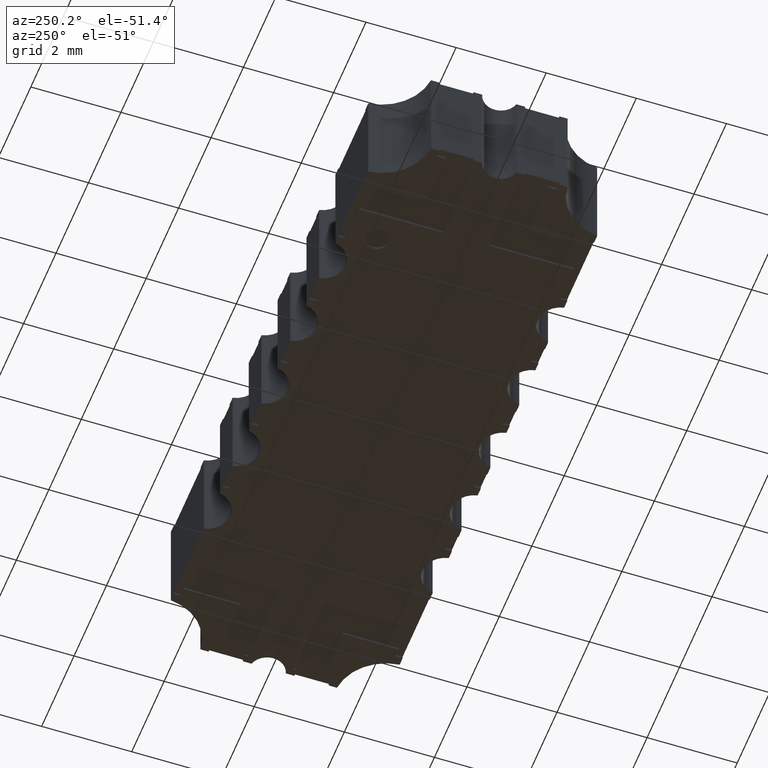
[diagram: clean part render]
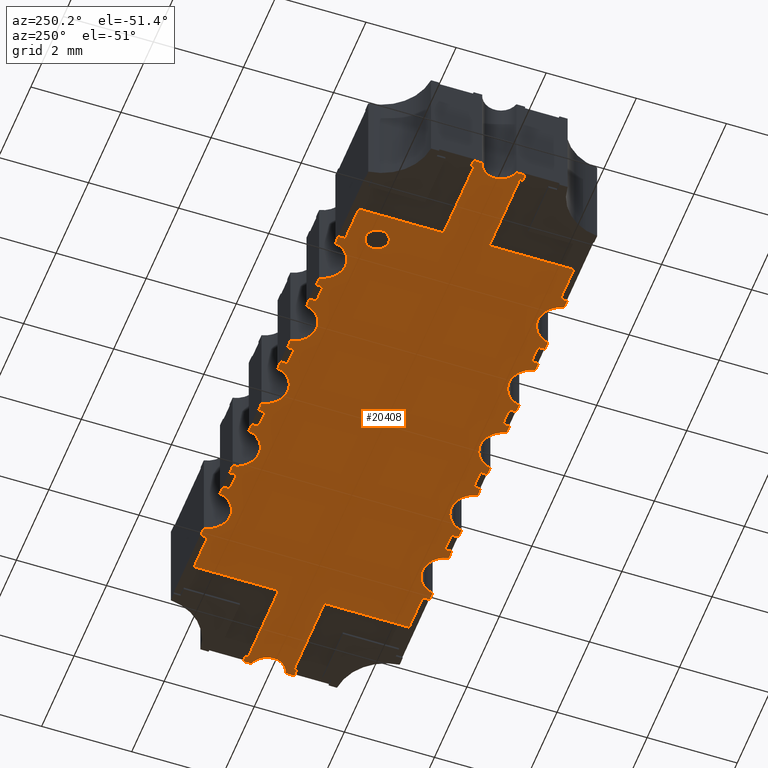
[diagram: same view with one face highlighted and labeled with its STEP entity id]
A machine part, auxiliary view. The second image highlights one B-rep face of the part: STEP entity #20408.
In plain terms, the highlighted planar face has unit normal (0, 0, 1).
Its self-contained STEP definition (entity closure, byte-faithful):
#44 = LINE ( 'NONE', #15777, #13889 ) ;
#46 = VERTEX_POINT ( 'NONE', #7331 ) ;
#55 = CARTESIAN_POINT ( 'NONE',  ( -0.2800000583921977149, -0.02250000000139679157, 0.000000000000000000 ) ) ;
#138 = EDGE_CURVE ( 'NONE', #10759, #2421, #2082, .T. ) ;
#159 = DIRECTION ( 'NONE',  ( 1.000000000000000000, 0.000000000000000000, 0.000000000000000000 ) ) ;
#169 = DIRECTION ( 'NONE',  ( 1.000000000000000000, 0.000000000000000000, 0.000000000000000000 ) ) ;
#213 = CARTESIAN_POINT ( 'NONE',  ( 0.1670031117323745318, -0.1000000000000482725, 0.000000000000000000 ) ) ;
#274 = CARTESIAN_POINT ( 'NONE',  ( -0.04299847332988399051, -0.09400000000135955158, 0.000000000000000000 ) ) ;
#282 = ORIENTED_EDGE ( 'NONE', *, *, #5411, .T. ) ;
#378 = LINE ( 'NONE', #7483, #17593 ) ;
#397 = CARTESIAN_POINT ( 'NONE',  ( 0.06999835654548830499, -0.1040000000012170633, 0.000000000000000000 ) ) ;
#553 = CARTESIAN_POINT ( 'NONE',  ( 0.1999999416078020453, -0.09400000000135866340, 0.000000000000000000 ) ) ;
#558 = DIRECTION ( 'NONE',  ( 1.000000000000000000, 0.000000000000000000, -0.000000000000000000 ) ) ;
#562 = EDGE_CURVE ( 'NONE', #20736, #11727, #6788, .T. ) ;
#575 = VERTEX_POINT ( 'NONE', #6660 ) ;
#607 = CIRCLE ( 'NONE', #7700, 0.02000000000000011144 ) ;
#627 = LINE ( 'NONE', #6201, #1980 ) ;
#650 = DIRECTION ( 'NONE',  ( 1.000000000000000000, 4.499242896688456966E-15, 0.000000000000000000 ) ) ;
#658 = VECTOR ( 'NONE', #7138, 39.37007874015748143 ) ;
#683 = EDGE_CURVE ( 'NONE', #13404, #2421, #8522, .T. ) ;
#692 = LINE ( 'NONE', #16977, #8382 ) ;
#700 = EDGE_CURVE ( 'NONE', #6027, #5141, #16091, .T. ) ;
#796 = DIRECTION ( 'NONE',  ( 1.000000000000000000, 1.386854387300352994E-14, 0.000000000000000000 ) ) ;
#807 = CARTESIAN_POINT ( 'NONE',  ( 0.01959585954974790711, 0.09999999999995101696, 0.000000000000000000 ) ) ;
#809 = AXIS2_PLACEMENT_3D ( 'NONE', #18792, #15298, #985 ) ;
#841 = AXIS2_PLACEMENT_3D ( 'NONE', #20437, #17071, #1468 ) ;
#852 = ORIENTED_EDGE ( 'NONE', *, *, #12425, .T. ) ;
#864 = LINE ( 'NONE', #22273, #1746 ) ;
#887 = LINE ( 'NONE', #18917, #11302 ) ;
#917 = DIRECTION ( 'NONE',  ( 0.000000000000000000, 1.000000000000000000, 0.000000000000000000 ) ) ;
#985 = DIRECTION ( 'NONE',  ( 1.000000000000000000, 0.000000000000000000, 0.000000000000000000 ) ) ;
#1002 = CARTESIAN_POINT ( 'NONE',  ( -0.2000000583921980879, -0.09400000000136349287, 0.000000000000000000 ) ) ;
#1020 = EDGE_CURVE ( 'NONE', #46, #16119, #12538, .T. ) ;
#1094 = LINE ( 'NONE', #9946, #9425 ) ;
#1098 = LINE ( 'NONE', #18448, #12921 ) ;
#1122 = EDGE_CURVE ( 'NONE', #15442, #6054, #15302, .T. ) ;
#1127 = CARTESIAN_POINT ( 'NONE',  ( 0.1670031117323736436, 0.09999999999995168309, 0.000000000000000000 ) ) ;
#1258 = EDGE_CURVE ( 'NONE', #10493, #10669, #16008, .T. ) ;
#1259 = EDGE_CURVE ( 'NONE', #17831, #575, #44, .T. ) ;
#1377 = CARTESIAN_POINT ( 'NONE',  ( -0.08959439127191033692, 0.09999999999995057287, 0.000000000000000000 ) ) ;
#1434 = CARTESIAN_POINT ( 'NONE',  ( 0.2739999415795458249, 0.02249999999860335942, 0.000000000000000000 ) ) ;
#1435 = EDGE_CURVE ( 'NONE', #7039, #14769, #627, .T. ) ;
#1453 = VERTEX_POINT ( 'NONE', #11000 ) ;
#1468 = DIRECTION ( 'NONE',  ( 1.000000000000000000, 0.000000000000000000, 0.000000000000000000 ) ) ;
#1472 = VERTEX_POINT ( 'NONE', #7843 ) ;
#1478 = CARTESIAN_POINT ( 'NONE',  ( 0.1670031117323745318, -0.09400000000135877443, 0.000000000000000000 ) ) ;
#1548 = DIRECTION ( 'NONE',  ( 1.000000000000000000, 3.325403303753631083E-15, 0.000000000000000000 ) ) ;
#1563 = VECTOR ( 'NONE', #19283, 39.37007874015748143 ) ;
#1564 = DIRECTION ( 'NONE',  ( -1.000000000000000000, 0.000000000000000000, 0.000000000000000000 ) ) ;
#1578 = CARTESIAN_POINT ( 'NONE',  ( 0.01959585954979498057, -0.1000000000000488276, 0.000000000000000000 ) ) ;
#1583 = CIRCLE ( 'NONE', #9761, 0.02000000000000019817 ) ;
#1592 = VECTOR ( 'NONE', #8478, 39.37007874015748143 ) ;
#1668 = VERTEX_POINT ( 'NONE', #10743 ) ;
#1695 = ORIENTED_EDGE ( 'NONE', *, *, #19243, .F. ) ;
#1705 = VECTOR ( 'NONE', #13864, 39.37007874015748143 ) ;
#1718 = VECTOR ( 'NONE', #8826, 39.37007874015748143 ) ;
#1746 = VECTOR ( 'NONE', #11691, 39.37007874015748143 ) ;
#1779 = DIRECTION ( 'NONE',  ( 3.699377492228362996E-14, -1.000000000000000000, 0.000000000000000000 ) ) ;
#1820 = CARTESIAN_POINT ( 'NONE',  ( -0.09699847332988381643, -0.1000000000000492717, 0.000000000000000000 ) ) ;
#1829 = CIRCLE ( 'NONE', #18551, 0.01999999999999994144 ) ;
#1847 = DIRECTION ( 'NONE',  ( -1.000000000000000000, 0.000000000000000000, 0.000000000000000000 ) ) ;
#1899 = ORIENTED_EDGE ( 'NONE', *, *, #19814, .F. ) ;
#1904 = CARTESIAN_POINT ( 'NONE',  ( -0.04299847332988465665, 0.09400000000126063071, 0.000000000000000000 ) ) ;
#1914 = VECTOR ( 'NONE', #1779, 39.37007874015748143 ) ;
#1931 = VERTEX_POINT ( 'NONE', #18283 ) ;
#1959 = LINE ( 'NONE', #3823, #2191 ) ;
#1980 = VECTOR ( 'NONE', #12980, 39.37007874015748143 ) ;
#2027 = ORIENTED_EDGE ( 'NONE', *, *, #16584, .T. ) ;
#2076 = DIRECTION ( 'NONE',  ( -0.000000000000000000, -0.000000000000000000, -1.000000000000000000 ) ) ;
#2079 = DIRECTION ( 'NONE',  ( -1.000000000000000000, 3.823426906372951005E-14, -0.000000000000000000 ) ) ;
#2082 = LINE ( 'NONE', #9188, #8631 ) ;
#2187 = DIRECTION ( 'NONE',  ( 0.000000000000000000, 0.000000000000000000, 1.000000000000000000 ) ) ;
#2191 = VECTOR ( 'NONE', #1847, 39.37007874015748143 ) ;
#2224 = EDGE_CURVE ( 'NONE', #1472, #12613, #5229, .T. ) ;
#2237 = VERTEX_POINT ( 'NONE', #8958 ) ;
#2260 = LINE ( 'NONE', #7743, #3019 ) ;
#2281 = VERTEX_POINT ( 'NONE', #7332 ) ;
#2290 = CARTESIAN_POINT ( 'NONE',  ( 0.1670031117323736436, 0.09400000000126151889, 0.000000000000000000 ) ) ;
#2293 = CARTESIAN_POINT ( 'NONE',  ( 0.1670031117323736436, 0.09400000000126151889, 0.000000000000000000 ) ) ;
#2325 = ORIENTED_EDGE ( 'NONE', *, *, #21748, .T. ) ;
#2353 = CARTESIAN_POINT ( 'NONE',  ( 0.2839999415794927651, -1.394717247834103868E-12, 0.000000000000000000 ) ) ;
#2421 = VERTEX_POINT ( 'NONE', #22318 ) ;
#2425 = EDGE_CURVE ( 'NONE', #9926, #16157, #8130, .T. ) ;
#2472 = ORIENTED_EDGE ( 'NONE', *, *, #20001, .T. ) ;
#2536 = DIRECTION ( 'NONE',  ( 1.000000000000000000, 3.325403303753631083E-15, 0.000000000000000000 ) ) ;
#2546 = LINE ( 'NONE', #20237, #18422 ) ;
#2582 = ORIENTED_EDGE ( 'NONE', *, *, #18610, .T. ) ;
#2600 = CARTESIAN_POINT ( 'NONE',  ( -0.02700005839217049786, 0.09999999999995097533, 0.000000000000000000 ) ) ;
#2634 = VERTEX_POINT ( 'NONE', #1434 ) ;
#2801 = DIRECTION ( 'NONE',  ( 0.000000000000000000, 1.000000000000000000, 0.000000000000000000 ) ) ;
#2895 = LINE ( 'NONE', #15351, #8284 ) ;
#2918 = VERTEX_POINT ( 'NONE', #8849 ) ;
#2934 = ORIENTED_EDGE ( 'NONE', *, *, #10200, .T. ) ;
#2939 = CARTESIAN_POINT ( 'NONE',  ( -0.1400032285167702173, -0.1040000000012463038, 0.000000000000000000 ) ) ;
#3019 = VECTOR ( 'NONE', #20073, 39.37007874015748143 ) ;
#3055 = VECTOR ( 'NONE', #7084, 39.37007874015748143 ) ;
#3179 = CARTESIAN_POINT ( 'NONE',  ( 0.1999999416078016012, -0.02000000000004859002, 0.000000000000000000 ) ) ;
#3262 = ORIENTED_EDGE ( 'NONE', *, *, #23042, .F. ) ;
#3266 = EDGE_CURVE ( 'NONE', #12104, #13884, #13696, .T. ) ;
#3271 = LINE ( 'NONE', #17697, #12865 ) ;
#3361 = LINE ( 'NONE', #8485, #23013 ) ;
#3401 = EDGE_CURVE ( 'NONE', #10493, #7039, #11939, .T. ) ;
#3499 = CARTESIAN_POINT ( 'NONE',  ( 0.1595990296743954873, -0.1000000000000498823, 0.000000000000000000 ) ) ;
#3530 = VERTEX_POINT ( 'NONE', #2600 ) ;
#3554 = VECTOR ( 'NONE', #10344, 39.37007874015748143 ) ;
#3597 = CARTESIAN_POINT ( 'NONE',  ( -0.1669968882675984534, -0.09400000000136349287, 0.000000000000000000 ) ) ;
#3772 = ORIENTED_EDGE ( 'NONE', *, *, #2224, .T. ) ;
#3789 = VERTEX_POINT ( 'NONE', #7717 ) ;
#3823 = CARTESIAN_POINT ( 'NONE',  ( 0.2739999415795564830, -0.02000000000004859002, 0.000000000000000000 ) ) ;
#3841 = EDGE_CURVE ( 'NONE', #18755, #20999, #5868, .T. ) ;
#3935 = FACE_OUTER_BOUND ( 'NONE', #5377, .T. ) ;
#3941 = LINE ( 'NONE', #13136, #16441 ) ;
#4005 = ORIENTED_EDGE ( 'NONE', *, *, #21898, .T. ) ;
#4136 = ORIENTED_EDGE ( 'NONE', *, *, #10334, .T. ) ;
#4216 = ORIENTED_EDGE ( 'NONE', *, *, #7311, .T. ) ;
#4306 = CARTESIAN_POINT ( 'NONE',  ( -0.1204073105747489048, -0.1000000000000493827, 0.000000000000000000 ) ) ;
#4368 = VECTOR ( 'NONE', #12172, 39.37007874015748143 ) ;
#4413 = ORIENTED_EDGE ( 'NONE', *, *, #18772, .F. ) ;
#4431 = VECTOR ( 'NONE', #22065, 39.37007874015748143 ) ;
#4487 = CARTESIAN_POINT ( 'NONE',  ( -0.1669968882675988975, 0.09400000000125686983, 0.000000000000000000 ) ) ;
#4505 = CARTESIAN_POINT ( 'NONE',  ( -0.2800000583921977149, -0.01497497914080020247, 0.000000000000000000 ) ) ;
#4523 = VERTEX_POINT ( 'NONE', #22305 ) ;
#4623 = LINE ( 'NONE', #1127, #16331 ) ;
#4668 = DIRECTION ( 'NONE',  ( 1.000000000000000000, 0.000000000000000000, 0.000000000000000000 ) ) ;
#4731 = LINE ( 'NONE', #11723, #21038 ) ;
#4788 = VERTEX_POINT ( 'NONE', #10614 ) ;
#4850 = LINE ( 'NONE', #1478, #8135 ) ;
#4889 = DIRECTION ( 'NONE',  ( 1.000000000000000000, 2.366626690042219999E-14, 0.000000000000000000 ) ) ;
#4902 = CARTESIAN_POINT ( 'NONE',  ( 0.02699994160782975480, 0.09999999999995101696, 0.000000000000000000 ) ) ;
#4918 = VECTOR ( 'NONE', #17984, 39.37007874015748143 ) ;
#4920 = EDGE_CURVE ( 'NONE', #1472, #2237, #17936, .T. ) ;
#4965 = ORIENTED_EDGE ( 'NONE', *, *, #6583, .T. ) ;
#5141 = VERTEX_POINT ( 'NONE', #9888 ) ;
#5162 = CARTESIAN_POINT ( 'NONE',  ( 0.2684999415794928623, -1.394717247834103868E-12, 0.000000000000000000 ) ) ;
#5175 = VERTEX_POINT ( 'NONE', #213 ) ;
#5190 = ORIENTED_EDGE ( 'NONE', *, *, #12233, .F. ) ;
#5191 = VERTEX_POINT ( 'NONE', #8721 ) ;
#5229 = LINE ( 'NONE', #10717, #22438 ) ;
#5244 = EDGE_CURVE ( 'NONE', #14871, #12423, #3941, .T. ) ;
#5250 = DIRECTION ( 'NONE',  ( -1.000000000000000000, -3.622116129762389261E-15, 0.000000000000000000 ) ) ;
#5342 = VERTEX_POINT ( 'NONE', #16516 ) ;
#5377 = EDGE_LOOP ( 'NONE', ( #3772, #18337, #7489, #11083, #11584, #12295, #8566, #16901, #16675, #22428, #13769, #14090, #2325, #19889, #22133, #14029, #12981, #21575, #4216, #20823, #20271, #6934, #19222, #9250, #1899, #10338, #10905, #20022, #19609, #4005, #21211, #20941, #18637, #1695, #17160, #13084, #6111, #6436, #18418, #20495, #18088, #20943, #11673, #2027, #12279, #13795, #11349, #21449, #21287, #21775, #21424, #6076, #5978, #5944, #20784, #20272, #16450, #15656, #14878, #16521, #2934, #4965, #13621, #14054, #15712, #20340, #13853, #3262, #22972, #7099, #14171, #17920, #10248, #2582, #20057, #4136, #4413, #18940, #7844, #282, #852, #13535, #22657, #5190, #13200 ) ) ;
#5410 = CARTESIAN_POINT ( 'NONE',  ( 0.1999999416078016012, 0.01999999999995144551, 0.000000000000000000 ) ) ;
#5411 = EDGE_CURVE ( 'NONE', #12104, #1453, #7061, .T. ) ;
#5452 = FACE_BOUND ( 'NONE', #6203, .T. ) ;
#5472 = EDGE_CURVE ( 'NONE', #7984, #46, #12299, .T. ) ;
#5675 = LINE ( 'NONE', #2290, #8639 ) ;
#5681 = DIRECTION ( 'NONE',  ( 0.000000000000000000, 0.000000000000000000, 1.000000000000000000 ) ) ;
#5697 = VECTOR ( 'NONE', #5250, 39.37007874015748143 ) ;
#5834 = EDGE_CURVE ( 'NONE', #17031, #6027, #13460, .T. ) ;
#5862 = CARTESIAN_POINT ( 'NONE',  ( -0.08959439127191033692, 0.09999999999995057287, 0.000000000000000000 ) ) ;
#5868 = CIRCLE ( 'NONE', #22984, 0.01549999999999990968 ) ;
#5931 = CARTESIAN_POINT ( 'NONE',  ( -0.2740000583639463083, 0.01999999999994966915, 0.000000000000000000 ) ) ;
#5944 = ORIENTED_EDGE ( 'NONE', *, *, #20463, .F. ) ;
#5978 = ORIENTED_EDGE ( 'NONE', *, *, #16693, .F. ) ;
#6027 = VERTEX_POINT ( 'NONE', #5862 ) ;
#6029 = CARTESIAN_POINT ( 'NONE',  ( -0.08959439127196738850, -0.1000000000000492717, 0.000000000000000000 ) ) ;
#6054 = VERTEX_POINT ( 'NONE', #7270 ) ;
#6064 = VECTOR ( 'NONE', #17337, 39.37007874015748143 ) ;
#6076 = ORIENTED_EDGE ( 'NONE', *, *, #5244, .F. ) ;
#6095 = CARTESIAN_POINT ( 'NONE',  ( 0.04299835654554391706, 0.09999999999995119737, 0.000000000000000000 ) ) ;
#6111 = ORIENTED_EDGE ( 'NONE', *, *, #5472, .T. ) ;
#6169 = VERTEX_POINT ( 'NONE', #22492 ) ;
#6183 = LINE ( 'NONE', #20491, #12576 ) ;
#6199 = VERTEX_POINT ( 'NONE', #6545 ) ;
#6201 = CARTESIAN_POINT ( 'NONE',  ( 0.02699994160782975480, 0.09400000000126085276, 0.000000000000000000 ) ) ;
#6203 = EDGE_LOOP ( 'NONE', ( #2472, #10756 ) ) ;
#6205 = EDGE_CURVE ( 'NONE', #17767, #17586, #12450, .T. ) ;
#6237 = DIRECTION ( 'NONE',  ( 1.000000000000000000, 0.000000000000000000, 0.000000000000000000 ) ) ;
#6244 = EDGE_CURVE ( 'NONE', #2281, #22149, #20229, .T. ) ;
#6263 = VERTEX_POINT ( 'NONE', #14771 ) ;
#6270 = DIRECTION ( 'NONE',  ( -1.000000000000000000, -3.201701548598671883E-15, 0.000000000000000000 ) ) ;
#6325 = EDGE_CURVE ( 'NONE', #4788, #9036, #16406, .T. ) ;
#6347 = EDGE_CURVE ( 'NONE', #13884, #22497, #22389, .T. ) ;
#6412 = VECTOR ( 'NONE', #14145, 39.37007874015748143 ) ;
#6436 = ORIENTED_EDGE ( 'NONE', *, *, #1020, .T. ) ;
#6462 = VERTEX_POINT ( 'NONE', #10778 ) ;
#6524 = VECTOR ( 'NONE', #16613, 39.37007874015748143 ) ;
#6545 = CARTESIAN_POINT ( 'NONE',  ( -0.01959597633424720042, -0.1000000000000489941, 0.000000000000000000 ) ) ;
#6556 = CIRCLE ( 'NONE', #12514, 0.01549999999999990968 ) ;
#6583 = EDGE_CURVE ( 'NONE', #7725, #7892, #5675, .T. ) ;
#6594 = DIRECTION ( 'NONE',  ( -0.000000000000000000, -0.000000000000000000, -1.000000000000000000 ) ) ;
#6635 = VERTEX_POINT ( 'NONE', #553 ) ;
#6660 = CARTESIAN_POINT ( 'NONE',  ( 0.2739999415795564830, -0.02250000000139656606, 0.000000000000000000 ) ) ;
#6708 = CARTESIAN_POINT ( 'NONE',  ( -0.1399968882675983184, 0.1040000000013738130, 0.000000000000000000 ) ) ;
#6753 = DIRECTION ( 'NONE',  ( 0.000000000000000000, -1.000000000000000000, 0.000000000000000000 ) ) ;
#6786 = CARTESIAN_POINT ( 'NONE',  ( -0.1669968882675989252, 0.09999999999995007327, 0.000000000000000000 ) ) ;
#6788 = CIRCLE ( 'NONE', #22780, 0.01550000000000011438 ) ;
#6805 = DIRECTION ( 'NONE',  ( 1.000000000000000000, 0.000000000000000000, 0.000000000000000000 ) ) ;
#6898 = DIRECTION ( 'NONE',  ( 0.000000000000000000, 1.000000000000000000, 0.000000000000000000 ) ) ;
#6903 = VERTEX_POINT ( 'NONE', #13922 ) ;
#6934 = ORIENTED_EDGE ( 'NONE', *, *, #8993, .T. ) ;
#6971 = CARTESIAN_POINT ( 'NONE',  ( -0.02700005839216940151, -0.09400000000135949607, 0.000000000000000000 ) ) ;
#7039 = VERTEX_POINT ( 'NONE', #20180 ) ;
#7045 = EDGE_CURVE ( 'NONE', #19807, #9036, #2260, .T. ) ;
#7050 = CARTESIAN_POINT ( 'NONE',  ( 0.1999999416078011572, 0.09400000000126151889, 0.000000000000000000 ) ) ;
#7061 = LINE ( 'NONE', #22774, #21996 ) ;
#7084 = DIRECTION ( 'NONE',  ( -1.000000000000000000, 0.000000000000000000, 0.000000000000000000 ) ) ;
#7089 = DIRECTION ( 'NONE',  ( 1.000000000000000000, 0.000000000000000000, 0.000000000000000000 ) ) ;
#7099 = ORIENTED_EDGE ( 'NONE', *, *, #8031, .F. ) ;
#7138 = DIRECTION ( 'NONE',  ( 0.000000000000000000, -1.000000000000000000, 0.000000000000000000 ) ) ;
#7151 = CARTESIAN_POINT ( 'NONE',  ( -0.09699847332988381643, -0.09400000000135977363, 0.000000000000000000 ) ) ;
#7182 = DIRECTION ( 'NONE',  ( 0.000000000000000000, 1.000000000000000000, 0.000000000000000000 ) ) ;
#7251 = EDGE_CURVE ( 'NONE', #16157, #22149, #17725, .T. ) ;
#7270 = CARTESIAN_POINT ( 'NONE',  ( -0.2740000583639463083, 0.02249999999860313737, 0.000000000000000000 ) ) ;
#7280 = VECTOR ( 'NONE', #4889, 39.37007874015748143 ) ;
#7311 = EDGE_CURVE ( 'NONE', #17767, #3789, #8532, .T. ) ;
#7313 = AXIS2_PLACEMENT_3D ( 'NONE', #18138, #2187, #19762 ) ;
#7331 = CARTESIAN_POINT ( 'NONE',  ( -0.1129968882675992936, 0.09400000000126040867, 0.000000000000000000 ) ) ;
#7332 = CARTESIAN_POINT ( 'NONE',  ( -0.05040255538791366813, -0.1000000000000490913, 0.000000000000000000 ) ) ;
#7344 = VERTEX_POINT ( 'NONE', #19122 ) ;
#7420 = VERTEX_POINT ( 'NONE', #11098 ) ;
#7483 = CARTESIAN_POINT ( 'NONE',  ( 0.2799999416078018943, 0.01497497913803885750, 0.000000000000000000 ) ) ;
#7489 = ORIENTED_EDGE ( 'NONE', *, *, #8701, .T. ) ;
#7506 = LINE ( 'NONE', #13092, #16979 ) ;
#7539 = EDGE_CURVE ( 'NONE', #7984, #13043, #17320, .T. ) ;
#7632 = LINE ( 'NONE', #21586, #22027 ) ;
#7635 = CARTESIAN_POINT ( 'NONE',  ( 0.08959427448745632683, 0.09999999999995123900, 0.000000000000000000 ) ) ;
#7649 = CARTESIAN_POINT ( 'NONE',  ( -5.839222699782519056E-08, 0.1040000000013747705, 0.000000000000000000 ) ) ;
#7667 = CARTESIAN_POINT ( 'NONE',  ( 0.06999835654548741681, 0.1040000000014034282, 0.000000000000000000 ) ) ;
#7700 = AXIS2_PLACEMENT_3D ( 'NONE', #6708, #6594, #14154 ) ;
#7717 = CARTESIAN_POINT ( 'NONE',  ( -0.1669968882675984534, -0.09400000000136349287, 0.000000000000000000 ) ) ;
#7725 = VERTEX_POINT ( 'NONE', #2293 ) ;
#7743 = CARTESIAN_POINT ( 'NONE',  ( 0.1130031117323733736, 0.09400000000126129684, 0.000000000000000000 ) ) ;
#7780 = CARTESIAN_POINT ( 'NONE',  ( -0.02700005839216940151, -0.1000000000000501182, 0.000000000000000000 ) ) ;
#7809 = CARTESIAN_POINT ( 'NONE',  ( -0.09699847332988470461, 0.09400000000126040867, 0.000000000000000000 ) ) ;
#7821 = EDGE_CURVE ( 'NONE', #6199, #22508, #17947, .T. ) ;
#7825 = DIRECTION ( 'NONE',  ( -5.346959845298819371E-15, 1.000000000000000000, 0.000000000000000000 ) ) ;
#7843 = CARTESIAN_POINT ( 'NONE',  ( 0.04299835654554478442, -0.1000000000000487721, 0.000000000000000000 ) ) ;
#7844 = ORIENTED_EDGE ( 'NONE', *, *, #3266, .F. ) ;
#7868 = CARTESIAN_POINT ( 'NONE',  ( 0.1670031117323736436, 0.09999999999995168309, 0.000000000000000000 ) ) ;
#7892 = VERTEX_POINT ( 'NONE', #7050 ) ;
#7894 = VERTEX_POINT ( 'NONE', #55 ) ;
#7984 = VERTEX_POINT ( 'NONE', #21819 ) ;
#8031 = EDGE_CURVE ( 'NONE', #17831, #18755, #7632, .T. ) ;
#8130 = LINE ( 'NONE', #18488, #10184 ) ;
#8135 = VECTOR ( 'NONE', #8570, 39.37007874015748143 ) ;
#8219 = LINE ( 'NONE', #22537, #8448 ) ;
#8225 = VERTEX_POINT ( 'NONE', #6786 ) ;
#8284 = VECTOR ( 'NONE', #10005, 39.37007874015748143 ) ;
#8293 = VERTEX_POINT ( 'NONE', #3179 ) ;
#8295 = VECTOR ( 'NONE', #15021, 39.37007874015748143 ) ;
#8342 = DIRECTION ( 'NONE',  ( 0.000000000000000000, -1.000000000000000000, 0.000000000000000000 ) ) ;
#8367 = EDGE_CURVE ( 'NONE', #22753, #1668, #378, .T. ) ;
#8382 = VECTOR ( 'NONE', #796, 39.37007874015748143 ) ;
#8393 = VERTEX_POINT ( 'NONE', #16445 ) ;
#8424 = DIRECTION ( 'NONE',  ( -1.000000000000000000, -4.499242896688456966E-15, 0.000000000000000000 ) ) ;
#8435 = CARTESIAN_POINT ( 'NONE',  ( -0.2800000583921981590, 0.02249999999860313737, 0.000000000000000000 ) ) ;
#8448 = VECTOR ( 'NONE', #9742, 39.37007874015748143 ) ;
#8478 = DIRECTION ( 'NONE',  ( -1.000000000000000000, -1.662701651874299903E-14, 0.000000000000000000 ) ) ;
#8485 = CARTESIAN_POINT ( 'NONE',  ( 0.09699835654554418707, 0.09999999999995123900, 0.000000000000000000 ) ) ;
#8522 = LINE ( 'NONE', #20968, #22029 ) ;
#8531 = EDGE_CURVE ( 'NONE', #14907, #3530, #17819, .T. ) ;
#8532 = LINE ( 'NONE', #13781, #22348 ) ;
#8566 = ORIENTED_EDGE ( 'NONE', *, *, #10166, .T. ) ;
#8570 = DIRECTION ( 'NONE',  ( 0.000000000000000000, -1.000000000000000000, 0.000000000000000000 ) ) ;
#8573 = CARTESIAN_POINT ( 'NONE',  ( -0.06999847332994051097, -0.1040000000012175907, 0.000000000000000000 ) ) ;
#8615 = DIRECTION ( 'NONE',  ( -1.000000000000000000, -7.205040491441846768E-15, 0.000000000000000000 ) ) ;
#8631 = VECTOR ( 'NONE', #16301, 39.37007874015748143 ) ;
#8639 = VECTOR ( 'NONE', #16280, 39.37007874015748143 ) ;
#8701 = EDGE_CURVE ( 'NONE', #6263, #9473, #2895, .T. ) ;
#8720 = LINE ( 'NONE', #3597, #3055 ) ;
#8721 = CARTESIAN_POINT ( 'NONE',  ( -0.02700005839216940151, -0.1000000000000501182, 0.000000000000000000 ) ) ;
#8733 = LINE ( 'NONE', #3499, #7280 ) ;
#8778 = LINE ( 'NONE', #7151, #17833 ) ;
#8817 = EDGE_CURVE ( 'NONE', #2634, #1668, #14074, .T. ) ;
#8826 = DIRECTION ( 'NONE',  ( 0.000000000000000000, 1.000000000000000000, 0.000000000000000000 ) ) ;
#8849 = CARTESIAN_POINT ( 'NONE',  ( -0.1850000583921979358, 0.06900000000125999788, 0.000000000000000000 ) ) ;
#8868 = LINE ( 'NONE', #16088, #5697 ) ;
#8911 = LINE ( 'NONE', #14385, #12488 ) ;
#8958 = CARTESIAN_POINT ( 'NONE',  ( 0.05040243860346144134, -0.1000000000000487166, 0.000000000000000000 ) ) ;
#8981 = DIRECTION ( 'NONE',  ( 1.000000000000000000, -4.155898811289112080E-14, -0.000000000000000000 ) ) ;
#8993 = EDGE_CURVE ( 'NONE', #21830, #5342, #1094, .T. ) ;
#9036 = VERTEX_POINT ( 'NONE', #22736 ) ;
#9135 = CARTESIAN_POINT ( 'NONE',  ( -0.09699847332988381643, -0.09400000000135977363, 0.000000000000000000 ) ) ;
#9185 = DIRECTION ( 'NONE',  ( 1.000000000000000000, 0.000000000000000000, 0.000000000000000000 ) ) ;
#9188 = CARTESIAN_POINT ( 'NONE',  ( 0.09699835654554506137, -0.09400000000135905198, 0.000000000000000000 ) ) ;
#9230 = EDGE_CURVE ( 'NONE', #6054, #19912, #18417, .T. ) ;
#9250 = ORIENTED_EDGE ( 'NONE', *, *, #15789, .T. ) ;
#9261 = DIRECTION ( 'NONE',  ( -4.583108439103661454E-15, 1.000000000000000000, 0.000000000000000000 ) ) ;
#9393 = VECTOR ( 'NONE', #2079, 39.37007874015748143 ) ;
#9425 = VECTOR ( 'NONE', #8424, 39.37007874015748143 ) ;
#9473 = VERTEX_POINT ( 'NONE', #13987 ) ;
#9503 = CARTESIAN_POINT ( 'NONE',  ( -0.1669968882675984534, -0.1000000000000540595, 0.000000000000000000 ) ) ;
#9511 = LINE ( 'NONE', #1002, #6524 ) ;
#9551 = DIRECTION ( 'NONE',  ( 0.000000000000000000, 1.000000000000000000, 0.000000000000000000 ) ) ;
#9627 = CARTESIAN_POINT ( 'NONE',  ( 0.1204071937903532924, -0.1000000000000498823, 0.000000000000000000 ) ) ;
#9742 = DIRECTION ( 'NONE',  ( -1.000000000000000000, -7.205040491441846768E-15, 0.000000000000000000 ) ) ;
#9757 = VECTOR ( 'NONE', #10153, 39.37007874015748143 ) ;
#9761 = AXIS2_PLACEMENT_3D ( 'NONE', #2939, #13088, #9932 ) ;
#9765 = VECTOR ( 'NONE', #22718, 39.37007874015748143 ) ;
#9815 = DIRECTION ( 'NONE',  ( -0.000000000000000000, -0.000000000000000000, -1.000000000000000000 ) ) ;
#9827 = EDGE_CURVE ( 'NONE', #6169, #8393, #3361, .T. ) ;
#9888 = CARTESIAN_POINT ( 'NONE',  ( -0.09699847332988470461, 0.09999999999995046185, 0.000000000000000000 ) ) ;
#9923 = CIRCLE ( 'NONE', #16246, 0.01999999999999993103 ) ;
#9926 = VERTEX_POINT ( 'NONE', #6971 ) ;
#9931 = EDGE_CURVE ( 'NONE', #17573, #8293, #1959, .T. ) ;
#9932 = DIRECTION ( 'NONE',  ( 1.000000000000000000, 0.000000000000000000, 0.000000000000000000 ) ) ;
#9946 = CARTESIAN_POINT ( 'NONE',  ( -0.2000000583921980879, -0.02000000000005002984, 0.000000000000000000 ) ) ;
#9978 = DIRECTION ( 'NONE',  ( -1.000000000000000000, 3.823426906372951005E-14, -0.000000000000000000 ) ) ;
#10005 = DIRECTION ( 'NONE',  ( 0.000000000000000000, -1.000000000000000000, 0.000000000000000000 ) ) ;
#10150 = VECTOR ( 'NONE', #8615, 39.37007874015748143 ) ;
#10153 = DIRECTION ( 'NONE',  ( 1.000000000000000000, 4.264192234310329643E-15, -0.000000000000000000 ) ) ;
#10166 = EDGE_CURVE ( 'NONE', #5191, #9926, #14654, .T. ) ;
#10184 = VECTOR ( 'NONE', #6270, 39.37007874015748143 ) ;
#10200 = EDGE_CURVE ( 'NONE', #17033, #7725, #4623, .T. ) ;
#10210 = CARTESIAN_POINT ( 'NONE',  ( 0.2739999415795458249, 0.01999999999995144551, 0.000000000000000000 ) ) ;
#10248 = ORIENTED_EDGE ( 'NONE', *, *, #9931, .T. ) ;
#10293 = VERTEX_POINT ( 'NONE', #10210 ) ;
#10329 = CARTESIAN_POINT ( 'NONE',  ( -0.1129968882675992936, 0.09999999999995057287, 0.000000000000000000 ) ) ;
#10334 = EDGE_CURVE ( 'NONE', #18092, #5175, #4850, .T. ) ;
#10338 = ORIENTED_EDGE ( 'NONE', *, *, #562, .F. ) ;
#10344 = DIRECTION ( 'NONE',  ( -1.000000000000000000, 8.527709305132630600E-16, -0.000000000000000000 ) ) ;
#10440 = DIRECTION ( 'NONE',  ( 0.000000000000000000, -1.000000000000000000, 0.000000000000000000 ) ) ;
#10472 = DIRECTION ( 'NONE',  ( 3.699377492228362996E-14, 1.000000000000000000, 0.000000000000000000 ) ) ;
#10493 = VERTEX_POINT ( 'NONE', #4902 ) ;
#10577 = LINE ( 'NONE', #17318, #3554 ) ;
#10614 = CARTESIAN_POINT ( 'NONE',  ( 0.1204071937903995054, 0.09999999999995007327, 0.000000000000000000 ) ) ;
#10655 = DIRECTION ( 'NONE',  ( -0.000000000000000000, -0.000000000000000000, -1.000000000000000000 ) ) ;
#10669 = VERTEX_POINT ( 'NONE', #807 ) ;
#10717 = CARTESIAN_POINT ( 'NONE',  ( 0.04299835654554478442, -0.1000000000000487721, 0.000000000000000000 ) ) ;
#10733 = CARTESIAN_POINT ( 'NONE',  ( 0.01959585954979498057, -0.1000000000000488276, 0.000000000000000000 ) ) ;
#10743 = CARTESIAN_POINT ( 'NONE',  ( 0.2799999416077983416, 0.02249999999860335942, 0.000000000000000000 ) ) ;
#10756 = ORIENTED_EDGE ( 'NONE', *, *, #20329, .T. ) ;
#10759 = VERTEX_POINT ( 'NONE', #22809 ) ;
#10778 = CARTESIAN_POINT ( 'NONE',  ( -0.02700005839217051173, 0.09400000000126063071, 0.000000000000000000 ) ) ;
#10905 = ORIENTED_EDGE ( 'NONE', *, *, #21598, .F. ) ;
#10952 = DIRECTION ( 'NONE',  ( 0.000000000000000000, 0.000000000000000000, 1.000000000000000000 ) ) ;
#10955 = VERTEX_POINT ( 'NONE', #20337 ) ;
#10976 = EDGE_CURVE ( 'NONE', #12613, #6263, #22775, .T. ) ;
#11000 = CARTESIAN_POINT ( 'NONE',  ( 0.1130031117323742618, -0.09400000000135899647, 0.000000000000000000 ) ) ;
#11083 = ORIENTED_EDGE ( 'NONE', *, *, #13956, .F. ) ;
#11094 = EDGE_CURVE ( 'NONE', #11714, #2281, #1829, .T. ) ;
#11098 = CARTESIAN_POINT ( 'NONE',  ( -0.1129968882675984193, -0.1000000000000493550, 0.000000000000000000 ) ) ;
#11122 = DIRECTION ( 'NONE',  ( -1.000000000000000000, -3.200433201462352517E-15, 0.000000000000000000 ) ) ;
#11130 = DIRECTION ( 'NONE',  ( 1.000000000000000000, 3.878838890543631598E-15, 0.000000000000000000 ) ) ;
#11178 = EDGE_CURVE ( 'NONE', #5191, #6199, #14961, .T. ) ;
#11287 = DIRECTION ( 'NONE',  ( -0.000000000000000000, -0.000000000000000000, -1.000000000000000000 ) ) ;
#11299 = EDGE_CURVE ( 'NONE', #18198, #17946, #8778, .T. ) ;
#11302 = VECTOR ( 'NONE', #16722, 39.37007874015748143 ) ;
#11349 = ORIENTED_EDGE ( 'NONE', *, *, #12084, .F. ) ;
#11384 = CARTESIAN_POINT ( 'NONE',  ( -0.09699847332988381643, -0.1000000000000492717, 0.000000000000000000 ) ) ;
#11561 = CARTESIAN_POINT ( 'NONE',  ( -0.2840000583640025500, -1.396885181941007179E-12, 0.000000000000000000 ) ) ;
#11581 = CARTESIAN_POINT ( 'NONE',  ( -0.1595928062095732236, 0.09999999999995007327, 0.000000000000000000 ) ) ;
#11584 = ORIENTED_EDGE ( 'NONE', *, *, #7821, .F. ) ;
#11593 = DIRECTION ( 'NONE',  ( -0.000000000000000000, -0.000000000000000000, -1.000000000000000000 ) ) ;
#11673 = ORIENTED_EDGE ( 'NONE', *, *, #15211, .T. ) ;
#11691 = DIRECTION ( 'NONE',  ( 5.998990526521401073E-15, -1.000000000000000000, 0.000000000000000000 ) ) ;
#11714 = VERTEX_POINT ( 'NONE', #6029 ) ;
#11723 = CARTESIAN_POINT ( 'NONE',  ( 0.08959427448745632683, 0.09999999999995123900, 0.000000000000000000 ) ) ;
#11727 = VERTEX_POINT ( 'NONE', #4505 ) ;
#11806 = CARTESIAN_POINT ( 'NONE',  ( 0.2799999416078018943, 0.01497497913803885750, 0.000000000000000000 ) ) ;
#11819 = VECTOR ( 'NONE', #22073, 39.37007874015748143 ) ;
#11836 = AXIS2_PLACEMENT_3D ( 'NONE', #7649, #11593, #6237 ) ;
#11939 = LINE ( 'NONE', #15552, #4368 ) ;
#11983 = LINE ( 'NONE', #19081, #16137 ) ;
#12084 = EDGE_CURVE ( 'NONE', #10669, #14907, #21865, .T. ) ;
#12101 = DIRECTION ( 'NONE',  ( -1.000000000000000000, 0.000000000000000000, 0.000000000000000000 ) ) ;
#12104 = VERTEX_POINT ( 'NONE', #22070 ) ;
#12172 = DIRECTION ( 'NONE',  ( 0.000000000000000000, -1.000000000000000000, 0.000000000000000000 ) ) ;
#12233 = EDGE_CURVE ( 'NONE', #2237, #13404, #9923, .T. ) ;
#12264 = CARTESIAN_POINT ( 'NONE',  ( 0.01959585954979498057, -0.1000000000000488276, 0.000000000000000000 ) ) ;
#12279 = ORIENTED_EDGE ( 'NONE', *, *, #12641, .T. ) ;
#12295 = ORIENTED_EDGE ( 'NONE', *, *, #11178, .F. ) ;
#12299 = LINE ( 'NONE', #10329, #1563 ) ;
#12396 = LINE ( 'NONE', #13918, #6412 ) ;
#12423 = VERTEX_POINT ( 'NONE', #6095 ) ;
#12425 = EDGE_CURVE ( 'NONE', #1453, #10759, #13205, .T. ) ;
#12450 = LINE ( 'NONE', #13656, #9757 ) ;
#12488 = VECTOR ( 'NONE', #11130, 39.37007874015748143 ) ;
#12513 = CIRCLE ( 'NONE', #7313, 0.009999999999999995004 ) ;
#12514 = AXIS2_PLACEMENT_3D ( 'NONE', #17243, #20385, #4668 ) ;
#12534 = VECTOR ( 'NONE', #17825, 39.37007874015748143 ) ;
#12538 = LINE ( 'NONE', #14290, #6064 ) ;
#12557 = PLANE ( 'NONE',  #15485 ) ;
#12576 = VECTOR ( 'NONE', #2801, 39.37007874015748143 ) ;
#12613 = VERTEX_POINT ( 'NONE', #21357 ) ;
#12641 = EDGE_CURVE ( 'NONE', #6462, #3530, #7506, .T. ) ;
#12690 = CARTESIAN_POINT ( 'NONE',  ( -0.1750000583921979547, 0.06900000000125999788, 0.000000000000000000 ) ) ;
#12788 = CARTESIAN_POINT ( 'NONE',  ( -0.1650000583921979458, 0.06900000000125999788, 0.000000000000000000 ) ) ;
#12795 = AXIS2_PLACEMENT_3D ( 'NONE', #22863, #19713, #159 ) ;
#12802 = EDGE_CURVE ( 'NONE', #7892, #7344, #864, .T. ) ;
#12865 = VECTOR ( 'NONE', #6753, 39.37007874015748143 ) ;
#12921 = VECTOR ( 'NONE', #650, 39.37007874015748143 ) ;
#12980 = DIRECTION ( 'NONE',  ( 1.000000000000000000, 1.387404004392796891E-14, 0.000000000000000000 ) ) ;
#12981 = ORIENTED_EDGE ( 'NONE', *, *, #18316, .F. ) ;
#13032 = CARTESIAN_POINT ( 'NONE',  ( 0.08959427448745632683, 0.09999999999995123900, 0.000000000000000000 ) ) ;
#13043 = VERTEX_POINT ( 'NONE', #15346 ) ;
#13084 = ORIENTED_EDGE ( 'NONE', *, *, #7539, .F. ) ;
#13088 = DIRECTION ( 'NONE',  ( -0.000000000000000000, -0.000000000000000000, -1.000000000000000000 ) ) ;
#13092 = CARTESIAN_POINT ( 'NONE',  ( -0.02700005839217051173, 0.09400000000126063071, 0.000000000000000000 ) ) ;
#13136 = CARTESIAN_POINT ( 'NONE',  ( 0.05040243860351850680, 0.09999999999995123900, 0.000000000000000000 ) ) ;
#13200 = ORIENTED_EDGE ( 'NONE', *, *, #4920, .F. ) ;
#13205 = LINE ( 'NONE', #16798, #15115 ) ;
#13336 = VERTEX_POINT ( 'NONE', #11384 ) ;
#13371 = CARTESIAN_POINT ( 'NONE',  ( 0.2739999415795564830, -0.02000000000004859002, 0.000000000000000000 ) ) ;
#13404 = VERTEX_POINT ( 'NONE', #13586 ) ;
#13415 = DIRECTION ( 'NONE',  ( 0.000000000000000000, -1.000000000000000000, 0.000000000000000000 ) ) ;
#13460 = CIRCLE ( 'NONE', #809, 0.01999999999999991368 ) ;
#13535 = ORIENTED_EDGE ( 'NONE', *, *, #138, .T. ) ;
#13586 = CARTESIAN_POINT ( 'NONE',  ( 0.08959427448751516865, -0.1000000000000486056, 0.000000000000000000 ) ) ;
#13594 = CARTESIAN_POINT ( 'NONE',  ( 0.04299835654554500647, -0.09400000000135927403, 0.000000000000000000 ) ) ;
#13621 = ORIENTED_EDGE ( 'NONE', *, *, #12802, .T. ) ;
#13656 = CARTESIAN_POINT ( 'NONE',  ( -0.1595991464587915298, -0.1000000000000494937, 0.000000000000000000 ) ) ;
#13667 = VECTOR ( 'NONE', #1548, 39.37007874015748143 ) ;
#13696 = LINE ( 'NONE', #9627, #11819 ) ;
#13769 = ORIENTED_EDGE ( 'NONE', *, *, #11094, .F. ) ;
#13781 = CARTESIAN_POINT ( 'NONE',  ( -0.1669968882675984534, -0.1000000000000540595, 0.000000000000000000 ) ) ;
#13795 = ORIENTED_EDGE ( 'NONE', *, *, #8531, .F. ) ;
#13853 = ORIENTED_EDGE ( 'NONE', *, *, #8367, .F. ) ;
#13864 = DIRECTION ( 'NONE',  ( -1.000000000000000000, -2.302663806526263008E-14, 0.000000000000000000 ) ) ;
#13884 = VERTEX_POINT ( 'NONE', #22974 ) ;
#13889 = VECTOR ( 'NONE', #1564, 39.37007874015748143 ) ;
#13918 = CARTESIAN_POINT ( 'NONE',  ( -0.2000000583921985320, 0.01999999999995000222, 0.000000000000000000 ) ) ;
#13922 = CARTESIAN_POINT ( 'NONE',  ( -0.04299847332988465665, 0.09999999999995079492, 0.000000000000000000 ) ) ;
#13928 = EDGE_CURVE ( 'NONE', #17946, #7420, #15996, .T. ) ;
#13934 = DIRECTION ( 'NONE',  ( 0.000000000000000000, 1.000000000000000000, 0.000000000000000000 ) ) ;
#13938 = DIRECTION ( 'NONE',  ( 1.000000000000000000, 0.000000000000000000, 0.000000000000000000 ) ) ;
#13956 = EDGE_CURVE ( 'NONE', #22508, #9473, #17389, .T. ) ;
#13987 = CARTESIAN_POINT ( 'NONE',  ( 0.02699994160783061870, -0.1000000000000487999, 0.000000000000000000 ) ) ;
#14029 = ORIENTED_EDGE ( 'NONE', *, *, #19503, .F. ) ;
#14034 = CARTESIAN_POINT ( 'NONE',  ( 0.1670031117323745318, -0.09400000000135877443, 0.000000000000000000 ) ) ;
#14054 = ORIENTED_EDGE ( 'NONE', *, *, #18140, .T. ) ;
#14071 = LINE ( 'NONE', #17447, #1718 ) ;
#14074 = LINE ( 'NONE', #15942, #19064 ) ;
#14090 = ORIENTED_EDGE ( 'NONE', *, *, #17104, .F. ) ;
#14145 = DIRECTION ( 'NONE',  ( 0.000000000000000000, 1.000000000000000000, 0.000000000000000000 ) ) ;
#14154 = DIRECTION ( 'NONE',  ( 1.000000000000000000, 0.000000000000000000, 0.000000000000000000 ) ) ;
#14171 = ORIENTED_EDGE ( 'NONE', *, *, #1259, .T. ) ;
#14185 = CARTESIAN_POINT ( 'NONE',  ( 0.1999999416078016012, -0.02000000000004859002, 0.000000000000000000 ) ) ;
#14213 = EDGE_CURVE ( 'NONE', #575, #17573, #6183, .T. ) ;
#14239 = CARTESIAN_POINT ( 'NONE',  ( -0.04299847332988399051, -0.09400000000135955158, 0.000000000000000000 ) ) ;
#14267 = LINE ( 'NONE', #5410, #4918 ) ;
#14290 = CARTESIAN_POINT ( 'NONE',  ( -0.1129968882675992936, 0.09400000000126040867, 0.000000000000000000 ) ) ;
#14371 = DIRECTION ( 'NONE',  ( -1.000000000000000000, -3.201701548598675039E-15, 0.000000000000000000 ) ) ;
#14385 = CARTESIAN_POINT ( 'NONE',  ( -0.1204073105747489048, -0.1000000000000493827, 0.000000000000000000 ) ) ;
#14415 = VECTOR ( 'NONE', #20672, 39.37007874015748143 ) ;
#14599 = VECTOR ( 'NONE', #2536, 39.37007874015748143 ) ;
#14654 = LINE ( 'NONE', #7780, #20398 ) ;
#14676 = DIRECTION ( 'NONE',  ( 1.000000000000000000, 0.000000000000000000, 0.000000000000000000 ) ) ;
#14731 = CARTESIAN_POINT ( 'NONE',  ( -0.2800000583921981590, 0.01497497913800655001, 0.000000000000000000 ) ) ;
#14769 = VERTEX_POINT ( 'NONE', #14956 ) ;
#14771 = CARTESIAN_POINT ( 'NONE',  ( 0.02699994160783064645, -0.09400000000135932954, 0.000000000000000000 ) ) ;
#14776 = VECTOR ( 'NONE', #13934, 39.37007874015748143 ) ;
#14818 = VERTEX_POINT ( 'NONE', #11581 ) ;
#14871 = VERTEX_POINT ( 'NONE', #22390 ) ;
#14878 = ORIENTED_EDGE ( 'NONE', *, *, #16090, .F. ) ;
#14880 = CARTESIAN_POINT ( 'NONE',  ( -0.05040255538791366119, -0.1000000000000490913, 0.000000000000000000 ) ) ;
#14907 = VERTEX_POINT ( 'NONE', #22632 ) ;
#14956 = CARTESIAN_POINT ( 'NONE',  ( 0.04299835654554389625, 0.09400000000126107480, 0.000000000000000000 ) ) ;
#14961 = LINE ( 'NONE', #19979, #4431 ) ;
#15021 = DIRECTION ( 'NONE',  ( 1.000000000000000000, 3.878838890543631598E-15, 0.000000000000000000 ) ) ;
#15043 = LINE ( 'NONE', #22140, #18353 ) ;
#15115 = VECTOR ( 'NONE', #11122, 39.37007874015748143 ) ;
#15211 = EDGE_CURVE ( 'NONE', #6903, #16124, #15043, .T. ) ;
#15216 = LINE ( 'NONE', #22084, #14415 ) ;
#15295 = CARTESIAN_POINT ( 'NONE',  ( -0.2000000583921980879, -0.09400000000136349287, 0.000000000000000000 ) ) ;
#15298 = DIRECTION ( 'NONE',  ( -0.000000000000000000, -0.000000000000000000, -1.000000000000000000 ) ) ;
#15302 = LINE ( 'NONE', #8435, #19076 ) ;
#15339 = AXIS2_PLACEMENT_3D ( 'NONE', #7667, #2076, #19887 ) ;
#15346 = CARTESIAN_POINT ( 'NONE',  ( -0.1204009703256233993, 0.09999999999995007327, 0.000000000000000000 ) ) ;
#15351 = CARTESIAN_POINT ( 'NONE',  ( 0.02699994160783064645, -0.09400000000135932954, 0.000000000000000000 ) ) ;
#15442 = VERTEX_POINT ( 'NONE', #21888 ) ;
#15448 = DIRECTION ( 'NONE',  ( -1.000000000000000000, -3.201701548598718426E-15, 0.000000000000000000 ) ) ;
#15485 = AXIS2_PLACEMENT_3D ( 'NONE', #19997, #5681, #558 ) ;
#15490 = CARTESIAN_POINT ( 'NONE',  ( 0.2799999416078018943, -0.01497497914082829285, 0.000000000000000000 ) ) ;
#15552 = CARTESIAN_POINT ( 'NONE',  ( 0.02699994160782975480, 0.09999999999995101696, 0.000000000000000000 ) ) ;
#15567 = LINE ( 'NONE', #1820, #14776 ) ;
#15572 = LINE ( 'NONE', #15679, #18314 ) ;
#15656 = ORIENTED_EDGE ( 'NONE', *, *, #6325, .F. ) ;
#15678 = DIRECTION ( 'NONE',  ( -0.000000000000000000, -0.000000000000000000, -1.000000000000000000 ) ) ;
#15679 = CARTESIAN_POINT ( 'NONE',  ( -0.2740000583639458642, -0.02000000000005036291, 0.000000000000000000 ) ) ;
#15712 = ORIENTED_EDGE ( 'NONE', *, *, #17985, .T. ) ;
#15724 = CARTESIAN_POINT ( 'NONE',  ( 0.2396800814760529641, 0.09999999999995190514, 0.000000000000000000 ) ) ;
#15725 = VECTOR ( 'NONE', #7089, 39.37007874015748143 ) ;
#15777 = CARTESIAN_POINT ( 'NONE',  ( 0.2799999416078054471, -0.02250000000139656606, 0.000000000000000000 ) ) ;
#15789 = EDGE_CURVE ( 'NONE', #20658, #7894, #11983, .T. ) ;
#15825 = LINE ( 'NONE', #14185, #16083 ) ;
#15835 = VERTEX_POINT ( 'NONE', #4487 ) ;
#15942 = CARTESIAN_POINT ( 'NONE',  ( 0.2739999415795458249, 0.02249999999860335942, 0.000000000000000000 ) ) ;
#15980 = CARTESIAN_POINT ( 'NONE',  ( -0.08959439127191033692, 0.09999999999995057287, 0.000000000000000000 ) ) ;
#15996 = LINE ( 'NONE', #19359, #658 ) ;
#16008 = LINE ( 'NONE', #17747, #22051 ) ;
#16040 = VERTEX_POINT ( 'NONE', #15295 ) ;
#16083 = VECTOR ( 'NONE', #19543, 39.37007874015748143 ) ;
#16088 = CARTESIAN_POINT ( 'NONE',  ( 0.1999999416078020453, -0.09400000000135866340, 0.000000000000000000 ) ) ;
#16090 = EDGE_CURVE ( 'NONE', #10955, #4788, #16869, .T. ) ;
#16091 = LINE ( 'NONE', #15980, #9765 ) ;
#16119 = VERTEX_POINT ( 'NONE', #19490 ) ;
#16124 = VERTEX_POINT ( 'NONE', #1904 ) ;
#16137 = VECTOR ( 'NONE', #12101, 39.37007874015748143 ) ;
#16157 = VERTEX_POINT ( 'NONE', #274 ) ;
#16246 = AXIS2_PLACEMENT_3D ( 'NONE', #397, #10655, #169 ) ;
#16280 = DIRECTION ( 'NONE',  ( 1.000000000000000000, 0.000000000000000000, 0.000000000000000000 ) ) ;
#16301 = DIRECTION ( 'NONE',  ( 0.000000000000000000, -1.000000000000000000, 0.000000000000000000 ) ) ;
#16325 = EDGE_CURVE ( 'NONE', #6635, #18092, #8868, .T. ) ;
#16331 = VECTOR ( 'NONE', #8342, 39.37007874015748143 ) ;
#16406 = LINE ( 'NONE', #13032, #9393 ) ;
#16433 = EDGE_CURVE ( 'NONE', #16119, #5141, #20031, .T. ) ;
#16441 = VECTOR ( 'NONE', #20222, 39.37007874015748143 ) ;
#16444 = DIRECTION ( 'NONE',  ( 1.000000000000000000, 0.000000000000000000, 0.000000000000000000 ) ) ;
#16445 = CARTESIAN_POINT ( 'NONE',  ( 0.09699835654554418707, 0.09400000000126107480, 0.000000000000000000 ) ) ;
#16450 = ORIENTED_EDGE ( 'NONE', *, *, #7045, .T. ) ;
#16516 = CARTESIAN_POINT ( 'NONE',  ( -0.2740000583639458642, -0.02000000000005036291, 0.000000000000000000 ) ) ;
#16521 = ORIENTED_EDGE ( 'NONE', *, *, #19875, .F. ) ;
#16584 = EDGE_CURVE ( 'NONE', #16124, #6462, #19082, .T. ) ;
#16613 = DIRECTION ( 'NONE',  ( 0.000000000000000000, 1.000000000000000000, 0.000000000000000000 ) ) ;
#16631 = CARTESIAN_POINT ( 'NONE',  ( 0.1400031117323743968, -0.1040000000012467063, 0.000000000000000000 ) ) ;
#16675 = ORIENTED_EDGE ( 'NONE', *, *, #7251, .T. ) ;
#16693 = EDGE_CURVE ( 'NONE', #20705, #14871, #17202, .T. ) ;
#16710 = CARTESIAN_POINT ( 'NONE',  ( -0.2000000583921985320, 0.09400000000125686983, 0.000000000000000000 ) ) ;
#16722 = DIRECTION ( 'NONE',  ( 0.000000000000000000, 1.000000000000000000, 0.000000000000000000 ) ) ;
#16798 = CARTESIAN_POINT ( 'NONE',  ( 0.1130031117323742618, -0.09400000000135899647, 0.000000000000000000 ) ) ;
#16827 = CARTESIAN_POINT ( 'NONE',  ( -0.1129968882675984054, -0.09400000000135981526, 0.000000000000000000 ) ) ;
#16869 = CIRCLE ( 'NONE', #12795, 0.02000000000000009409 ) ;
#16893 = EDGE_CURVE ( 'NONE', #5342, #20658, #15572, .T. ) ;
#16901 = ORIENTED_EDGE ( 'NONE', *, *, #2425, .T. ) ;
#16977 = CARTESIAN_POINT ( 'NONE',  ( 0.09699835654554418707, 0.09400000000126107480, 0.000000000000000000 ) ) ;
#16979 = VECTOR ( 'NONE', #21583, 39.37007874015748143 ) ;
#17004 = VECTOR ( 'NONE', #22392, 39.37007874015748143 ) ;
#17031 = VERTEX_POINT ( 'NONE', #17057 ) ;
#17033 = VERTEX_POINT ( 'NONE', #7868 ) ;
#17057 = CARTESIAN_POINT ( 'NONE',  ( -0.05040255538797250301, 0.09999999999995079492, 0.000000000000000000 ) ) ;
#17071 = DIRECTION ( 'NONE',  ( -0.000000000000000000, -0.000000000000000000, -1.000000000000000000 ) ) ;
#17104 = EDGE_CURVE ( 'NONE', #13336, #11714, #19803, .T. ) ;
#17160 = ORIENTED_EDGE ( 'NONE', *, *, #20631, .F. ) ;
#17202 = CIRCLE ( 'NONE', #15339, 0.01999999999999990674 ) ;
#17243 = CARTESIAN_POINT ( 'NONE',  ( 0.2839999415794927651, -1.394717247834103868E-12, 0.000000000000000000 ) ) ;
#17318 = CARTESIAN_POINT ( 'NONE',  ( -0.2396801982604498948, 0.09999999999995014266, 0.000000000000000000 ) ) ;
#17320 = LINE ( 'NONE', #1377, #1592 ) ;
#17337 = DIRECTION ( 'NONE',  ( 1.000000000000000000, 0.000000000000000000, 0.000000000000000000 ) ) ;
#17389 = LINE ( 'NONE', #12264, #13667 ) ;
#17447 = CARTESIAN_POINT ( 'NONE',  ( -0.1669968882675988975, 0.09400000000125686983, 0.000000000000000000 ) ) ;
#17523 = CARTESIAN_POINT ( 'NONE',  ( 0.1595990296743954873, -0.1000000000000498823, 0.000000000000000000 ) ) ;
#17565 = AXIS2_PLACEMENT_3D ( 'NONE', #16631, #11287, #9185 ) ;
#17573 = VERTEX_POINT ( 'NONE', #13371 ) ;
#17586 = VERTEX_POINT ( 'NONE', #22434 ) ;
#17593 = VECTOR ( 'NONE', #7825, 39.37007874015748143 ) ;
#17697 = CARTESIAN_POINT ( 'NONE',  ( -0.2800000583921977149, -0.01497497914080020420, 0.000000000000000000 ) ) ;
#17725 = LINE ( 'NONE', #14239, #1914 ) ;
#17747 = CARTESIAN_POINT ( 'NONE',  ( 0.05040243860351850680, 0.09999999999995123900, 0.000000000000000000 ) ) ;
#17767 = VERTEX_POINT ( 'NONE', #9503 ) ;
#17819 = LINE ( 'NONE', #19445, #10150 ) ;
#17825 = DIRECTION ( 'NONE',  ( 1.000000000000000000, 3.325403303753631083E-15, 0.000000000000000000 ) ) ;
#17831 = VERTEX_POINT ( 'NONE', #21953 ) ;
#17833 = VECTOR ( 'NONE', #14371, 39.37007874015748143 ) ;
#17920 = ORIENTED_EDGE ( 'NONE', *, *, #14213, .T. ) ;
#17936 = LINE ( 'NONE', #10733, #12534 ) ;
#17946 = VERTEX_POINT ( 'NONE', #16827 ) ;
#17947 = CIRCLE ( 'NONE', #841, 0.01999999999999996572 ) ;
#17984 = DIRECTION ( 'NONE',  ( 1.000000000000000000, 0.000000000000000000, 0.000000000000000000 ) ) ;
#17985 = EDGE_CURVE ( 'NONE', #10293, #2634, #887, .T. ) ;
#18065 = EDGE_CURVE ( 'NONE', #1931, #20680, #12396, .T. ) ;
#18073 = DIRECTION ( 'NONE',  ( -0.000000000000000000, -0.000000000000000000, -1.000000000000000000 ) ) ;
#18088 = ORIENTED_EDGE ( 'NONE', *, *, #5834, .F. ) ;
#18092 = VERTEX_POINT ( 'NONE', #14034 ) ;
#18138 = CARTESIAN_POINT ( 'NONE',  ( -0.1750000583921979547, 0.06900000000125999788, 0.000000000000000000 ) ) ;
#18140 = EDGE_CURVE ( 'NONE', #7344, #10293, #14267, .T. ) ;
#18198 = VERTEX_POINT ( 'NONE', #9135 ) ;
#18249 = DIRECTION ( 'NONE',  ( 0.000000000000000000, 1.000000000000000000, 0.000000000000000000 ) ) ;
#18283 = CARTESIAN_POINT ( 'NONE',  ( -0.2000000583921985320, 0.01999999999995000222, 0.000000000000000000 ) ) ;
#18314 = VECTOR ( 'NONE', #10440, 39.37007874015748143 ) ;
#18316 = EDGE_CURVE ( 'NONE', #17586, #4523, #1583, .T. ) ;
#18337 = ORIENTED_EDGE ( 'NONE', *, *, #10976, .T. ) ;
#18353 = VECTOR ( 'NONE', #13415, 39.37007874015748143 ) ;
#18417 = LINE ( 'NONE', #20274, #20886 ) ;
#18418 = ORIENTED_EDGE ( 'NONE', *, *, #16433, .T. ) ;
#18422 = VECTOR ( 'NONE', #917, 39.37007874015748143 ) ;
#18448 = CARTESIAN_POINT ( 'NONE',  ( -0.2740000583639463083, 0.01999999999994966915, 0.000000000000000000 ) ) ;
#18488 = CARTESIAN_POINT ( 'NONE',  ( -0.02700005839216940151, -0.09400000000135949607, 0.000000000000000000 ) ) ;
#18551 = AXIS2_PLACEMENT_3D ( 'NONE', #8573, #15678, #13938 ) ;
#18599 = EDGE_CURVE ( 'NONE', #3789, #16040, #8720, .T. ) ;
#18610 = EDGE_CURVE ( 'NONE', #8293, #6635, #15825, .T. ) ;
#18637 = ORIENTED_EDGE ( 'NONE', *, *, #20235, .T. ) ;
#18721 = CARTESIAN_POINT ( 'NONE',  ( -0.04299847332988390725, -0.1000000000000490774, 0.000000000000000000 ) ) ;
#18755 = VERTEX_POINT ( 'NONE', #15490 ) ;
#18772 = EDGE_CURVE ( 'NONE', #22497, #5175, #8733, .T. ) ;
#18792 = CARTESIAN_POINT ( 'NONE',  ( -0.06999847332994144078, 0.1040000000014028592, 0.000000000000000000 ) ) ;
#18811 = AXIS2_PLACEMENT_3D ( 'NONE', #12690, #10952, #14676 ) ;
#18917 = CARTESIAN_POINT ( 'NONE',  ( 0.2739999415795458249, 0.01999999999995144551, 0.000000000000000000 ) ) ;
#18940 = ORIENTED_EDGE ( 'NONE', *, *, #6347, .F. ) ;
#18989 = DIRECTION ( 'NONE',  ( 1.000000000000000000, 0.000000000000000000, 0.000000000000000000 ) ) ;
#19037 = EDGE_CURVE ( 'NONE', #14769, #12423, #2546, .T. ) ;
#19064 = VECTOR ( 'NONE', #21272, 39.37007874015748143 ) ;
#19068 = EDGE_CURVE ( 'NONE', #8393, #19807, #692, .T. ) ;
#19076 = VECTOR ( 'NONE', #6805, 39.37007874015748143 ) ;
#19081 = CARTESIAN_POINT ( 'NONE',  ( -0.2740000583639458642, -0.02250000000139679157, 0.000000000000000000 ) ) ;
#19082 = LINE ( 'NONE', #19426, #15725 ) ;
#19122 = CARTESIAN_POINT ( 'NONE',  ( 0.1999999416078016012, 0.01999999999995144551, 0.000000000000000000 ) ) ;
#19222 = ORIENTED_EDGE ( 'NONE', *, *, #16893, .T. ) ;
#19243 = EDGE_CURVE ( 'NONE', #14818, #8225, #10577, .T. ) ;
#19277 = CARTESIAN_POINT ( 'NONE',  ( -0.2740000583639458642, -0.02250000000139679157, 0.000000000000000000 ) ) ;
#19283 = DIRECTION ( 'NONE',  ( 0.000000000000000000, -1.000000000000000000, 0.000000000000000000 ) ) ;
#19324 = EDGE_CURVE ( 'NONE', #16040, #21830, #9511, .T. ) ;
#19359 = CARTESIAN_POINT ( 'NONE',  ( -0.1129968882675984054, -0.09400000000135981526, 0.000000000000000000 ) ) ;
#19426 = CARTESIAN_POINT ( 'NONE',  ( -0.04299847332988465665, 0.09400000000126063071, 0.000000000000000000 ) ) ;
#19445 = CARTESIAN_POINT ( 'NONE',  ( -0.01959597633420190332, 0.09999999999995101696, 0.000000000000000000 ) ) ;
#19490 = CARTESIAN_POINT ( 'NONE',  ( -0.09699847332988470461, 0.09400000000126040867, 0.000000000000000000 ) ) ;
#19503 = EDGE_CURVE ( 'NONE', #4523, #7420, #8911, .T. ) ;
#19543 = DIRECTION ( 'NONE',  ( 5.998990526521401073E-15, -1.000000000000000000, 0.000000000000000000 ) ) ;
#19609 = ORIENTED_EDGE ( 'NONE', *, *, #9230, .T. ) ;
#19713 = DIRECTION ( 'NONE',  ( -0.000000000000000000, -0.000000000000000000, -1.000000000000000000 ) ) ;
#19762 = DIRECTION ( 'NONE',  ( 1.000000000000000000, 0.000000000000000000, 0.000000000000000000 ) ) ;
#19803 = LINE ( 'NONE', #4306, #8295 ) ;
#19807 = VERTEX_POINT ( 'NONE', #21297 ) ;
#19814 = EDGE_CURVE ( 'NONE', #11727, #7894, #3271, .T. ) ;
#19875 = EDGE_CURVE ( 'NONE', #17033, #10955, #22702, .T. ) ;
#19887 = DIRECTION ( 'NONE',  ( 1.000000000000000000, 0.000000000000000000, 0.000000000000000000 ) ) ;
#19889 = ORIENTED_EDGE ( 'NONE', *, *, #11299, .T. ) ;
#19912 = VERTEX_POINT ( 'NONE', #5931 ) ;
#19967 = CARTESIAN_POINT ( 'NONE',  ( -0.2000000583921985320, 0.09400000000125686983, 0.000000000000000000 ) ) ;
#19979 = CARTESIAN_POINT ( 'NONE',  ( -0.05040255538791366119, -0.1000000000000490913, 0.000000000000000000 ) ) ;
#19997 = CARTESIAN_POINT ( 'NONE',  ( -0.2840000583639460952, 0.1040000000012600012, 0.000000000000000000 ) ) ;
#20001 = EDGE_CURVE ( 'NONE', #2918, #22313, #22908, .T. ) ;
#20022 = ORIENTED_EDGE ( 'NONE', *, *, #1122, .T. ) ;
#20031 = LINE ( 'NONE', #7809, #22394 ) ;
#20057 = ORIENTED_EDGE ( 'NONE', *, *, #16325, .T. ) ;
#20073 = DIRECTION ( 'NONE',  ( 0.000000000000000000, 1.000000000000000000, 0.000000000000000000 ) ) ;
#20180 = CARTESIAN_POINT ( 'NONE',  ( 0.02699994160782975480, 0.09400000000126085276, 0.000000000000000000 ) ) ;
#20222 = DIRECTION ( 'NONE',  ( -1.000000000000000000, -7.205040491441846768E-15, 0.000000000000000000 ) ) ;
#20229 = LINE ( 'NONE', #14880, #14599 ) ;
#20235 = EDGE_CURVE ( 'NONE', #15835, #8225, #14071, .T. ) ;
#20237 = CARTESIAN_POINT ( 'NONE',  ( 0.04299835654554389625, 0.09400000000126107480, 0.000000000000000000 ) ) ;
#20271 = ORIENTED_EDGE ( 'NONE', *, *, #19324, .T. ) ;
#20272 = ORIENTED_EDGE ( 'NONE', *, *, #19068, .T. ) ;
#20274 = CARTESIAN_POINT ( 'NONE',  ( -0.2740000583639463083, 0.02249999999860313737, 0.000000000000000000 ) ) ;
#20329 = EDGE_CURVE ( 'NONE', #22313, #2918, #12513, .T. ) ;
#20337 = CARTESIAN_POINT ( 'NONE',  ( 0.1595990296743493020, 0.09999999999995007327, 0.000000000000000000 ) ) ;
#20340 = ORIENTED_EDGE ( 'NONE', *, *, #8817, .T. ) ;
#20385 = DIRECTION ( 'NONE',  ( -0.000000000000000000, -0.000000000000000000, -1.000000000000000000 ) ) ;
#20398 = VECTOR ( 'NONE', #18249, 39.37007874015748143 ) ;
#20408 = ADVANCED_FACE ( 'NONE', ( #5452, #3935 ), #12557, .F. ) ;
#20437 = CARTESIAN_POINT ( 'NONE',  ( -5.839222609254845790E-08, -0.1040000000012457210, 0.000000000000000000 ) ) ;
#20463 = EDGE_CURVE ( 'NONE', #6169, #20705, #4731, .T. ) ;
#20491 = CARTESIAN_POINT ( 'NONE',  ( 0.2739999415795564830, -0.02250000000139656606, 0.000000000000000000 ) ) ;
#20495 = ORIENTED_EDGE ( 'NONE', *, *, #700, .F. ) ;
#20531 = LINE ( 'NONE', #16710, #17004 ) ;
#20586 = DIRECTION ( 'NONE',  ( 0.000000000000000000, -1.000000000000000000, 0.000000000000000000 ) ) ;
#20631 = EDGE_CURVE ( 'NONE', #13043, #14818, #607, .T. ) ;
#20658 = VERTEX_POINT ( 'NONE', #19277 ) ;
#20672 = DIRECTION ( 'NONE',  ( 0.000000000000000000, -1.000000000000000000, 0.000000000000000000 ) ) ;
#20680 = VERTEX_POINT ( 'NONE', #19967 ) ;
#20705 = VERTEX_POINT ( 'NONE', #7635 ) ;
#20736 = VERTEX_POINT ( 'NONE', #14731 ) ;
#20784 = ORIENTED_EDGE ( 'NONE', *, *, #9827, .T. ) ;
#20823 = ORIENTED_EDGE ( 'NONE', *, *, #18599, .T. ) ;
#20886 = VECTOR ( 'NONE', #21568, 39.37007874015748143 ) ;
#20941 = ORIENTED_EDGE ( 'NONE', *, *, #21955, .T. ) ;
#20943 = ORIENTED_EDGE ( 'NONE', *, *, #21494, .F. ) ;
#20968 = CARTESIAN_POINT ( 'NONE',  ( 0.1204071937903532924, -0.1000000000000498823, 0.000000000000000000 ) ) ;
#20999 = VERTEX_POINT ( 'NONE', #5162 ) ;
#21038 = VECTOR ( 'NONE', #9978, 39.37007874015748143 ) ;
#21116 = DIRECTION ( 'NONE',  ( -1.000000000000000000, -7.205040491441846768E-15, 0.000000000000000000 ) ) ;
#21211 = ORIENTED_EDGE ( 'NONE', *, *, #18065, .T. ) ;
#21272 = DIRECTION ( 'NONE',  ( 1.000000000000000000, 0.000000000000000000, 0.000000000000000000 ) ) ;
#21287 = ORIENTED_EDGE ( 'NONE', *, *, #3401, .T. ) ;
#21297 = CARTESIAN_POINT ( 'NONE',  ( 0.1130031117323733736, 0.09400000000126129684, 0.000000000000000000 ) ) ;
#21357 = CARTESIAN_POINT ( 'NONE',  ( 0.04299835654554500647, -0.09400000000135927403, 0.000000000000000000 ) ) ;
#21424 = ORIENTED_EDGE ( 'NONE', *, *, #19037, .T. ) ;
#21449 = ORIENTED_EDGE ( 'NONE', *, *, #1258, .F. ) ;
#21494 = EDGE_CURVE ( 'NONE', #6903, #17031, #8219, .T. ) ;
#21568 = DIRECTION ( 'NONE',  ( 0.000000000000000000, -1.000000000000000000, 0.000000000000000000 ) ) ;
#21575 = ORIENTED_EDGE ( 'NONE', *, *, #6205, .F. ) ;
#21583 = DIRECTION ( 'NONE',  ( 0.000000000000000000, 1.000000000000000000, 0.000000000000000000 ) ) ;
#21586 = CARTESIAN_POINT ( 'NONE',  ( 0.2799999416078021164, -0.05968013989519410645, 0.000000000000000000 ) ) ;
#21598 = EDGE_CURVE ( 'NONE', #15442, #20736, #15216, .T. ) ;
#21718 = CARTESIAN_POINT ( 'NONE',  ( -0.2000000583921980879, -0.02000000000005002984, 0.000000000000000000 ) ) ;
#21748 = EDGE_CURVE ( 'NONE', #13336, #18198, #15567, .T. ) ;
#21775 = ORIENTED_EDGE ( 'NONE', *, *, #1435, .T. ) ;
#21819 = CARTESIAN_POINT ( 'NONE',  ( -0.1129968882675992936, 0.09999999999995057287, 0.000000000000000000 ) ) ;
#21830 = VERTEX_POINT ( 'NONE', #21718 ) ;
#21865 = CIRCLE ( 'NONE', #11836, 0.02000000000000009756 ) ;
#21888 = CARTESIAN_POINT ( 'NONE',  ( -0.2800000583921981590, 0.02249999999860313737, 0.000000000000000000 ) ) ;
#21897 = VECTOR ( 'NONE', #15448, 39.37007874015748143 ) ;
#21898 = EDGE_CURVE ( 'NONE', #19912, #1931, #1098, .T. ) ;
#21953 = CARTESIAN_POINT ( 'NONE',  ( 0.2799999416078054471, -0.02250000000139656606, 0.000000000000000000 ) ) ;
#21955 = EDGE_CURVE ( 'NONE', #20680, #15835, #20531, .T. ) ;
#21996 = VECTOR ( 'NONE', #7182, 39.37007874015748143 ) ;
#22027 = VECTOR ( 'NONE', #9261, 39.37007874015748143 ) ;
#22029 = VECTOR ( 'NONE', #8981, 39.37007874015748143 ) ;
#22051 = VECTOR ( 'NONE', #21116, 39.37007874015748143 ) ;
#22065 = DIRECTION ( 'NONE',  ( 1.000000000000000000, 3.325403303753631083E-15, 0.000000000000000000 ) ) ;
#22070 = CARTESIAN_POINT ( 'NONE',  ( 0.1130031117323742618, -0.1000000000000484945, 0.000000000000000000 ) ) ;
#22073 = DIRECTION ( 'NONE',  ( 1.000000000000000000, -4.155898811289112080E-14, -0.000000000000000000 ) ) ;
#22084 = CARTESIAN_POINT ( 'NONE',  ( -0.2800000583921981590, 0.05968013989509574069, 0.000000000000000000 ) ) ;
#22133 = ORIENTED_EDGE ( 'NONE', *, *, #13928, .T. ) ;
#22140 = CARTESIAN_POINT ( 'NONE',  ( -0.04299847332988465665, 0.09999999999995079492, 0.000000000000000000 ) ) ;
#22149 = VERTEX_POINT ( 'NONE', #18721 ) ;
#22273 = CARTESIAN_POINT ( 'NONE',  ( 0.1999999416078011572, 0.09400000000126151889, 0.000000000000000000 ) ) ;
#22305 = CARTESIAN_POINT ( 'NONE',  ( -0.1204073105747489048, -0.1000000000000493827, 0.000000000000000000 ) ) ;
#22313 = VERTEX_POINT ( 'NONE', #12788 ) ;
#22318 = CARTESIAN_POINT ( 'NONE',  ( 0.09699835654554510300, -0.1000000000000489109, 0.000000000000000000 ) ) ;
#22348 = VECTOR ( 'NONE', #6898, 39.37007874015748143 ) ;
#22389 = CIRCLE ( 'NONE', #17565, 0.01999999999999997613 ) ;
#22390 = CARTESIAN_POINT ( 'NONE',  ( 0.05040243860351849986, 0.09999999999995123900, 0.000000000000000000 ) ) ;
#22392 = DIRECTION ( 'NONE',  ( 1.000000000000000000, 0.000000000000000000, 0.000000000000000000 ) ) ;
#22394 = VECTOR ( 'NONE', #9551, 39.37007874015748143 ) ;
#22428 = ORIENTED_EDGE ( 'NONE', *, *, #6244, .F. ) ;
#22434 = CARTESIAN_POINT ( 'NONE',  ( -0.1595991464587915298, -0.1000000000000494937, 0.000000000000000000 ) ) ;
#22438 = VECTOR ( 'NONE', #10472, 39.37007874015748143 ) ;
#22492 = CARTESIAN_POINT ( 'NONE',  ( 0.09699835654554418707, 0.09999999999995123900, 0.000000000000000000 ) ) ;
#22497 = VERTEX_POINT ( 'NONE', #17523 ) ;
#22508 = VERTEX_POINT ( 'NONE', #1578 ) ;
#22537 = CARTESIAN_POINT ( 'NONE',  ( -0.01959597633420190332, 0.09999999999995101696, 0.000000000000000000 ) ) ;
#22632 = CARTESIAN_POINT ( 'NONE',  ( -0.01959597633420190332, 0.09999999999995101696, 0.000000000000000000 ) ) ;
#22657 = ORIENTED_EDGE ( 'NONE', *, *, #683, .F. ) ;
#22702 = LINE ( 'NONE', #15724, #1705 ) ;
#22718 = DIRECTION ( 'NONE',  ( -1.000000000000000000, -1.662701651874299903E-14, 0.000000000000000000 ) ) ;
#22736 = CARTESIAN_POINT ( 'NONE',  ( 0.1130031117323733736, 0.09999999999995035083, 0.000000000000000000 ) ) ;
#22753 = VERTEX_POINT ( 'NONE', #11806 ) ;
#22774 = CARTESIAN_POINT ( 'NONE',  ( 0.1130031117323742618, -0.1000000000000484945, 0.000000000000000000 ) ) ;
#22775 = LINE ( 'NONE', #13594, #21897 ) ;
#22780 = AXIS2_PLACEMENT_3D ( 'NONE', #11561, #9815, #18989 ) ;
#22809 = CARTESIAN_POINT ( 'NONE',  ( 0.09699835654554506137, -0.09400000000135905198, 0.000000000000000000 ) ) ;
#22863 = CARTESIAN_POINT ( 'NONE',  ( 0.1400031117323743968, 0.1040000000013738130, 0.000000000000000000 ) ) ;
#22908 = CIRCLE ( 'NONE', #18811, 0.009999999999999995004 ) ;
#22972 = ORIENTED_EDGE ( 'NONE', *, *, #3841, .F. ) ;
#22974 = CARTESIAN_POINT ( 'NONE',  ( 0.1204071937903532924, -0.1000000000000498823, 0.000000000000000000 ) ) ;
#22984 = AXIS2_PLACEMENT_3D ( 'NONE', #2353, #18073, #16444 ) ;
#23013 = VECTOR ( 'NONE', #20586, 39.37007874015748143 ) ;
#23042 = EDGE_CURVE ( 'NONE', #20999, #22753, #6556, .T. ) ;